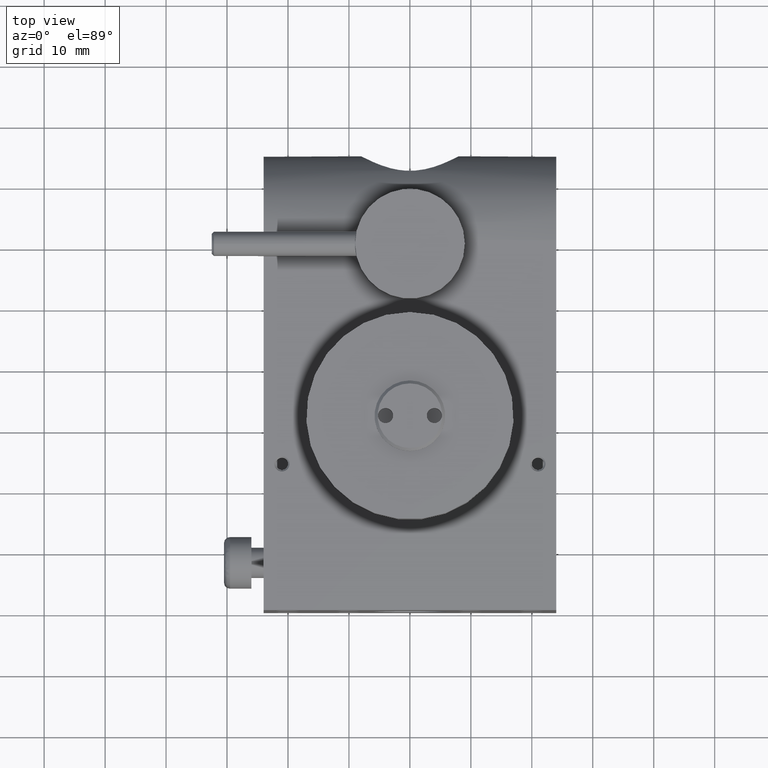
[diagram: clean part render]
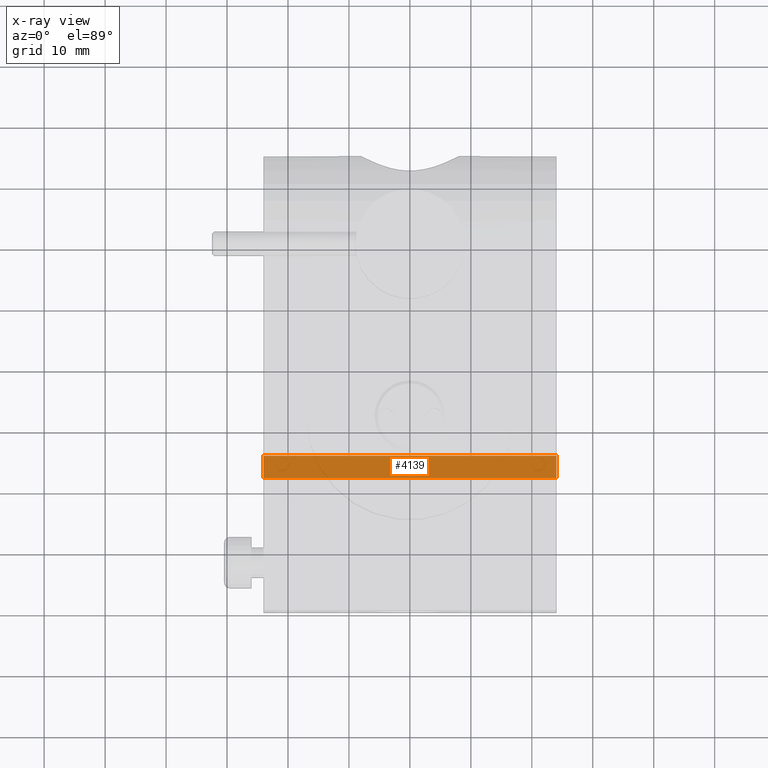
[diagram: x-ray — body ghosted, one internal face saturated and labeled with its STEP entity id]
A machine part, top view, then the same camera in x-ray: the body is ghosted and one INTERNAL B-rep face — a face not visible from any outside direction — is saturated and labeled: STEP entity #4139.
In plain terms, the highlighted planar face has unit normal (0, -0.5001, -0.8659).
Its self-contained STEP definition (entity closure, byte-faithful):
#249 = CARTESIAN_POINT ( 'NONE',  ( -24.00000000000000000, 25.69999999999999929, -8.310000000000002274 ) ) ;
#272 = VERTEX_POINT ( 'NONE', #2526 ) ;
#948 = CARTESIAN_POINT ( 'NONE',  ( 24.00000000000000000, 25.69999999999999929, -8.310000000000002274 ) ) ;
#1033 = LINE ( 'NONE', #1705, #2553 ) ;
#1049 = AXIS2_PLACEMENT_3D ( 'NONE', #3913, #4705, #2338 ) ;
#1270 = VECTOR ( 'NONE', #4634, 1000.000000000000114 ) ;
#1364 = EDGE_CURVE ( 'NONE', #272, #4773, #4080, .T. ) ;
#1519 = CARTESIAN_POINT ( 'NONE',  ( -24.00000000000001421, 22.00000000000000000, -6.172999999999998266 ) ) ;
#1556 = PLANE ( 'NONE',  #1049 ) ;
#1705 = CARTESIAN_POINT ( 'NONE',  ( 24.00000000000000000, 25.69999999999999929, -8.310000000000002274 ) ) ;
#1965 = EDGE_LOOP ( 'NONE', ( #2348, #2680, #2324, #4514 ) ) ;
#2324 = ORIENTED_EDGE ( 'NONE', *, *, #1364, .F. ) ;
#2338 = DIRECTION ( 'NONE',  ( 0.000000000000000000, 0.8659439130615630420, -0.5001411195169099821 ) ) ;
#2348 = ORIENTED_EDGE ( 'NONE', *, *, #3806, .T. ) ;
#2445 = EDGE_CURVE ( 'NONE', #4773, #3919, #1033, .T. ) ;
#2526 = CARTESIAN_POINT ( 'NONE',  ( -24.00000000000000711, 25.69999999999999929, -8.310000000000002274 ) ) ;
#2537 = DIRECTION ( 'NONE',  ( 1.000000000000000000, 0.000000000000000000, 0.000000000000000000 ) ) ;
#2553 = VECTOR ( 'NONE', #4883, 1000.000000000000114 ) ;
#2680 = ORIENTED_EDGE ( 'NONE', *, *, #2445, .F. ) ;
#2792 = VECTOR ( 'NONE', #2537, 1000.000000000000000 ) ;
#3095 = VERTEX_POINT ( 'NONE', #1519 ) ;
#3272 = DIRECTION ( 'NONE',  ( 1.000000000000000000, 0.000000000000000000, -0.000000000000000000 ) ) ;
#3346 = CARTESIAN_POINT ( 'NONE',  ( 24.00000000000000000, 22.00000000000000000, -6.173000000000000931 ) ) ;
#3490 = EDGE_CURVE ( 'NONE', #272, #3095, #3794, .T. ) ;
#3555 = FACE_OUTER_BOUND ( 'NONE', #1965, .T. ) ;
#3654 = LINE ( 'NONE', #3346, #5012 ) ;
#3679 = CARTESIAN_POINT ( 'NONE',  ( 24.00000000000000000, 22.00000000000000355, -6.172999999999998266 ) ) ;
#3728 = CARTESIAN_POINT ( 'NONE',  ( 24.00000000000000000, 25.69999999999999929, -8.310000000000002274 ) ) ;
#3794 = LINE ( 'NONE', #249, #1270 ) ;
#3806 = EDGE_CURVE ( 'NONE', #3095, #3919, #3654, .T. ) ;
#3913 = CARTESIAN_POINT ( 'NONE',  ( 24.00000000000000000, 25.69999999999999929, -8.310000000000002274 ) ) ;
#3919 = VERTEX_POINT ( 'NONE', #3679 ) ;
#4080 = LINE ( 'NONE', #948, #2792 ) ;
#4139 = ADVANCED_FACE ( 'NONE', ( #3555 ), #1556, .F. ) ;
#4514 = ORIENTED_EDGE ( 'NONE', *, *, #3490, .T. ) ;
#4634 = DIRECTION ( 'NONE',  ( 0.000000000000000000, -0.8659439130615639302, 0.5001411195169085389 ) ) ;
#4705 = DIRECTION ( 'NONE',  ( 0.000000000000000000, -0.5001411195169100932, -0.8659439130615631530 ) ) ;
#4773 = VERTEX_POINT ( 'NONE', #3728 ) ;
#4883 = DIRECTION ( 'NONE',  ( 0.000000000000000000, -0.8659439130615639302, 0.5001411195169085389 ) ) ;
#5012 = VECTOR ( 'NONE', #3272, 1000.000000000000000 ) ;